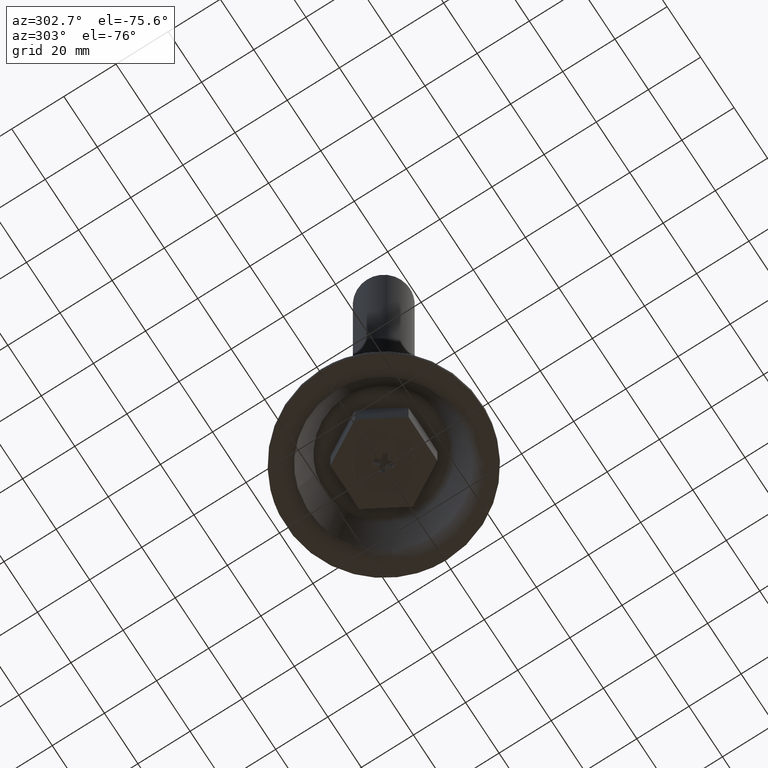
[diagram: clean part render]
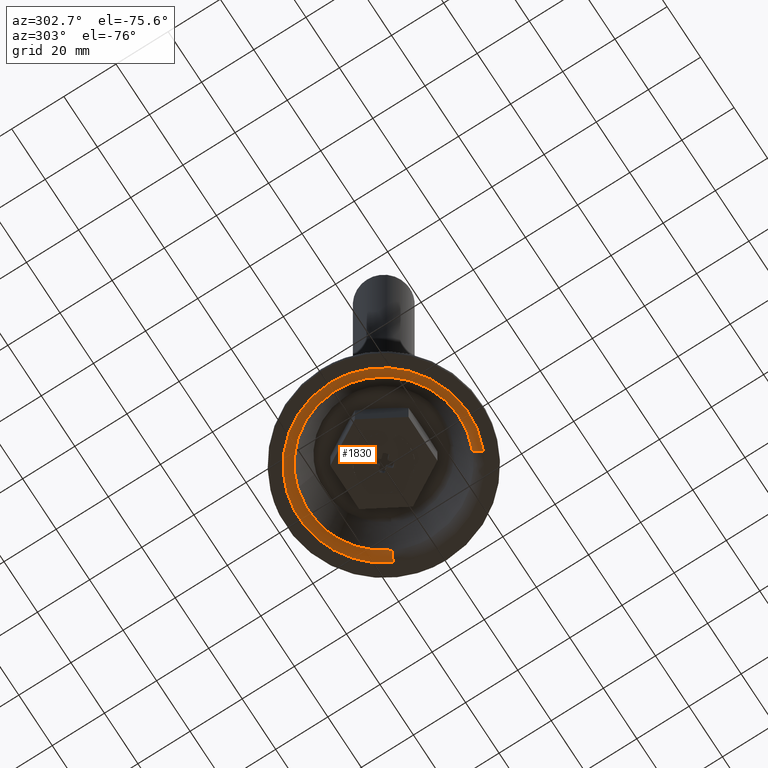
[diagram: same view with one face highlighted and labeled with its STEP entity id]
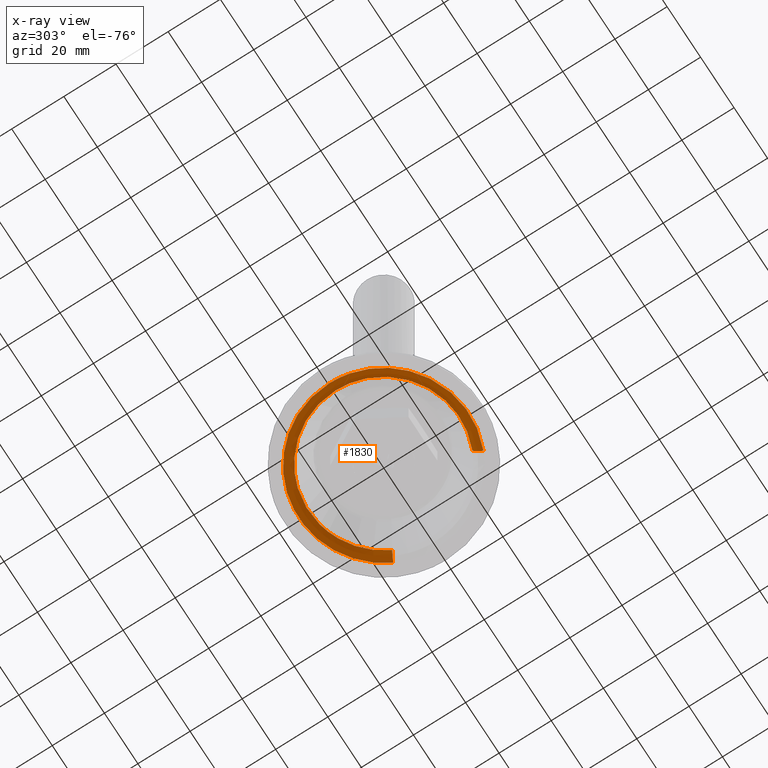
[diagram: x-ray of the same camera — body ghosted, the highlighted face saturated]
A machine part, auxiliary view. The second image highlights one B-rep face of the part: STEP entity #1830.
The next image is the same camera in x-ray: the body ghosted, the highlighted face saturated — about 0% of this face is hidden behind the body in this view.
In plain terms, the highlighted face is a freeform B-spline surface patch.
Its self-contained STEP definition (entity closure, byte-faithful):
#948=CARTESIAN_POINT('',(12.959905010489690,25.878573955914419,2.237050468426590));
#949=VERTEX_POINT('',#948);
#955=CARTESIAN_POINT('',(25.704757550631701,13.301322007688951,2.237050467865480));
#956=VERTEX_POINT('',#955);
#957=CARTESIAN_POINT('',(12.959905010489686,25.878573955914419,2.237050468426590));
#958=CARTESIAN_POINT('',(21.377962305026102,21.662838456192784,2.237050468240243));
#959=CARTESIAN_POINT('',(25.704757550631697,13.301322007688947,2.237050467865479));
#967=(BOUNDED_CURVE()B_SPLINE_CURVE(2,(#957,#958,#959),.UNSPECIFIED.,.F.,.U.)B_SPLINE_CURVE_WITH_KNOTS((3,3),(0.326127052924934,0.421825371003125),.UNSPECIFIED.)CURVE()GEOMETRIC_REPRESENTATION_ITEM()RATIONAL_B_SPLINE_CURVE((0.875940413897271,0.832104291764525,0.874103860136193))REPRESENTATION_ITEM(''));
#968=EDGE_CURVE('',#949,#956,#967,.T.);
#985=CARTESIAN_POINT('',(11.809436058359850,-26.423416659402740,2.237050464913309));
#986=VERTEX_POINT('',#985);
#1000=CARTESIAN_POINT('',(-28.942351802662198,0.0,2.237050468566510));
#1001=VERTEX_POINT('',#1000);
#1002=CARTESIAN_POINT('',(11.809436058359852,-26.423416659402740,2.237050464913309));
#1003=CARTESIAN_POINT('',(6.173360588688218,-28.942351802662198,2.237050468566510));
#1004=CARTESIAN_POINT('',(0.0,-28.942351802662198,2.237050468566510));
#1005=CARTESIAN_POINT('',(-28.942351802662202,-28.942351802662202,2.237050468566510));
#1006=CARTESIAN_POINT('',(-28.942351802662198,0.0,2.237050468566510));
#1014=(BOUNDED_CURVE()B_SPLINE_CURVE(2,(#1002,#1003,#1004,#1005,#1006),.UNSPECIFIED.,.F.,.U.)B_SPLINE_CURVE_WITH_KNOTS((3,2,3),(0.680709483576080,0.750000000000000,1.0),.UNSPECIFIED.)CURVE()GEOMETRIC_REPRESENTATION_ITEM()RATIONAL_B_SPLINE_CURVE((0.882641638330479,0.918821110445407,1.0,0.707106781186548,1.0))REPRESENTATION_ITEM(''));
#1015=EDGE_CURVE('',#986,#1001,#1014,.T.);
#1017=CARTESIAN_POINT('',(-8.220072023805756,27.750498081884249,2.237050468561174));
#1018=VERTEX_POINT('',#1017);
#1019=CARTESIAN_POINT('',(-28.942351802662198,0.0,2.237050468566510));
#1020=CARTESIAN_POINT('',(-28.942351802662195,21.612279164956146,2.237050468566510));
#1021=CARTESIAN_POINT('',(-8.220072023805756,27.750498081884245,2.237050468561175));
#1029=(BOUNDED_CURVE()B_SPLINE_CURVE(2,(#1019,#1020,#1021),.UNSPECIFIED.,.F.,.U.)B_SPLINE_CURVE_WITH_KNOTS((3,3),(0.0,0.201641517065129),.UNSPECIFIED.)CURVE()GEOMETRIC_REPRESENTATION_ITEM()RATIONAL_B_SPLINE_CURVE((1.0,0.763762268081467,0.908607213379560))REPRESENTATION_ITEM(''));
#1030=EDGE_CURVE('',#1001,#1018,#1029,.T.);
#1132=CARTESIAN_POINT('',(-8.220072023805756,27.750498081884245,2.237050468561175));
#1133=CARTESIAN_POINT('',(-4.196441294476952,28.942351802662202,2.237050468566509));
#1134=CARTESIAN_POINT('',(0.0,28.942351802662198,2.237050468566510));
#1135=CARTESIAN_POINT('',(6.842097701779646,28.942351802662198,2.237050468566510));
#1136=CARTESIAN_POINT('',(12.959905010489686,25.878573955914419,2.237050468426590));
#1144=(BOUNDED_CURVE()B_SPLINE_CURVE(2,(#1132,#1133,#1134,#1135,#1136),.UNSPECIFIED.,.F.,.U.)B_SPLINE_CURVE_WITH_KNOTS((3,2,3),(0.201641517065129,0.250000000000000,0.326127052924934),.UNSPECIFIED.)CURVE()GEOMETRIC_REPRESENTATION_ITEM()RATIONAL_B_SPLINE_CURVE((0.908607213379560,0.943344513105081,1.0,0.910811609720136,0.875940413897271))REPRESENTATION_ITEM(''));
#1145=EDGE_CURVE('',#1018,#949,#1144,.T.);
#1733=CARTESIAN_POINT('',(13.360122058931159,-29.893050781160223,0.005508355514710));
#1734=CARTESIAN_POINT('',(-14.869483275386079,-42.509728005006110,0.005508355514710));
#1735=CARTESIAN_POINT('',(-29.080025218520500,-15.047906157494939,0.005508355514710));
#1736=CARTESIAN_POINT('',(-44.127931376015439,14.032119061025560,0.005508355514710));
#1737=CARTESIAN_POINT('',(-15.047906157494939,29.080025218520500,0.005508355514710));
#1738=CARTESIAN_POINT('',(14.032119061025556,44.127931376015439,0.005508355514710));
#1739=CARTESIAN_POINT('',(29.080025218520500,15.047906157494939,0.005508355514710));
#1740=CARTESIAN_POINT('',(12.221916583652151,-27.346334971092841,-0.141036379579506));
#1741=CARTESIAN_POINT('',(-13.602688914978263,-38.888143939045086,-0.141036379579505));
#1742=CARTESIAN_POINT('',(-26.602574505198223,-13.765911194844453,-0.141036379579506));
#1743=CARTESIAN_POINT('',(-40.368485700042669,12.836663310353774,-0.141036379579506));
#1744=CARTESIAN_POINT('',(-13.765911194844453,26.602574505198223,-0.141036379579506));
#1745=CARTESIAN_POINT('',(12.836663310353773,40.368485700042669,-0.141036379579506));
#1746=CARTESIAN_POINT('',(26.602574505198223,13.765911194844453,-0.141036379579506));
#1747=CARTESIAN_POINT('',(11.773801071749741,-26.343683970298308,2.427354544556524));
#1748=CARTESIAN_POINT('',(-13.103947505260404,-37.462313513112626,2.427354544556523));
#1749=CARTESIAN_POINT('',(-25.627193417401873,-13.261185254386630,2.427354544556523));
#1750=CARTESIAN_POINT('',(-38.888378671788516,12.366008163015243,2.427354544556525));
#1751=CARTESIAN_POINT('',(-13.261185254386630,25.627193417401873,2.427354544556523));
#1752=CARTESIAN_POINT('',(12.366008163015241,38.888378671788516,2.427354544556525));
#1753=CARTESIAN_POINT('',(25.627193417401873,13.261185254386639,2.427354544556523));
#1761=(BOUNDED_SURFACE()B_SPLINE_SURFACE(2,2,((#1733,#1740,#1747),(#1734,#1741,#1748),(#1735,#1742,#1749),(#1736,#1743,#1750),(#1737,#1744,#1751),(#1738,#1745,#1752),(#1739,#1746,#1753)),.UNSPECIFIED.,.F.,.F.,.U.)B_SPLINE_SURFACE_WITH_KNOTS((3,2,2,3),(3,3),(0.0,52.079957855682849,106.329913955352500,160.579870055022100),(0.0,5.033719472252813),.UNSPECIFIED.)GEOMETRIC_REPRESENTATION_ITEM()RATIONAL_B_SPLINE_SURFACE(((0.898933571987331,0.737985855779478,0.901312929656294),(0.661043326759624,0.542688181205107,0.662793020572444),(0.919619680268002,0.754968262264206,0.922053791315759),(0.650269312030109,0.533843177827644,0.651990488458139),(0.919619680268002,0.754968262264206,0.922053791315759),(0.650269312030109,0.533843177827644,0.651990488458139),(0.919619680268002,0.754968262264206,0.922053791315759)))REPRESENTATION_ITEM('')SURFACE());
#1762=ORIENTED_EDGE('',*,*,#1015,.F.);
#1763=CARTESIAN_POINT('',(13.274496829089260,-29.701465753989400,6.272560E-016));
#1764=VERTEX_POINT('',#1763);
#1765=CARTESIAN_POINT('',(13.274496829089260,-29.701465753989396,6.272560E-016));
#1766=CARTESIAN_POINT('',(12.257614234115522,-27.426207869960287,1.437971E-009));
#1767=CARTESIAN_POINT('',(11.809436058359843,-26.423416659402736,2.237050464913308));
#1775=(BOUNDED_CURVE()B_SPLINE_CURVE(2,(#1765,#1766,#1767),.UNSPECIFIED.,.F.,.U.)B_SPLINE_CURVE_WITH_KNOTS((3,3),(-1.645059919763166,-0.344443062990276),.UNSPECIFIED.)CURVE()GEOMETRIC_REPRESENTATION_ITEM()RATIONAL_B_SPLINE_CURVE((0.884983933343745,0.752043508571352,0.887147264049694))REPRESENTATION_ITEM(''));
#1776=EDGE_CURVE('',#1764,#986,#1775,.T.);
#1777=ORIENTED_EDGE('',*,*,#1776,.F.);
#1778=CARTESIAN_POINT('',(-32.532896183340213,0.0,0.0));
#1779=VERTEX_POINT('',#1778);
#1780=CARTESIAN_POINT('',(13.274496829089262,-29.701465753989400,6.272560E-016));
#1781=CARTESIAN_POINT('',(6.939218364182151,-32.532896183340206,0.0));
#1782=CARTESIAN_POINT('',(0.0,-32.532896183340213,0.0));
#1783=CARTESIAN_POINT('',(-32.532896183340213,-32.532896183340213,0.0));
#1784=CARTESIAN_POINT('',(-32.532896183340213,0.0,0.0));
#1792=(BOUNDED_CURVE()B_SPLINE_CURVE(2,(#1780,#1781,#1782,#1783,#1784),.UNSPECIFIED.,.F.,.U.)B_SPLINE_CURVE_WITH_KNOTS((3,2,3),(0.680709483576861,0.750000000000000,1.0),.UNSPECIFIED.)CURVE()GEOMETRIC_REPRESENTATION_ITEM()RATIONAL_B_SPLINE_CURVE((0.882641638331295,0.918821110446322,1.0,0.707106781186547,1.0))REPRESENTATION_ITEM(''));
#1793=EDGE_CURVE('',#1764,#1779,#1792,.T.);
#1794=ORIENTED_EDGE('',*,*,#1793,.T.);
#1795=CARTESIAN_POINT('',(28.893650884553431,14.951463892994591,6.131464E-016));
#1796=VERTEX_POINT('',#1795);
#1797=CARTESIAN_POINT('',(-32.532896183340213,0.0,0.0));
#1798=CARTESIAN_POINT('',(-32.532896183340213,32.532896183340213,0.0));
#1799=CARTESIAN_POINT('',(0.0,32.532896183340213,0.0));
#1800=CARTESIAN_POINT('',(19.795868431173304,32.532896183340206,0.0));
#1801=CARTESIAN_POINT('',(28.893650884553434,14.951463892994592,6.131464E-016));
#1809=(BOUNDED_CURVE()B_SPLINE_CURVE(2,(#1797,#1798,#1799,#1800,#1801),.UNSPECIFIED.,.F.,.U.)B_SPLINE_CURVE_WITH_KNOTS((3,2,3),(0.0,0.250000000000000,0.421825371002056),.UNSPECIFIED.)CURVE()GEOMETRIC_REPRESENTATION_ITEM()RATIONAL_B_SPLINE_CURVE((1.0,0.707106781186547,1.0,0.798694056053569,0.874103860135254))REPRESENTATION_ITEM(''));
#1810=EDGE_CURVE('',#1779,#1796,#1809,.T.);
#1811=ORIENTED_EDGE('',*,*,#1810,.T.);
#1812=CARTESIAN_POINT('',(28.893650884553434,14.951463892994587,6.131464E-016));
#1813=CARTESIAN_POINT('',(26.680275031799241,13.806118526987175,1.800484E-009));
#1814=CARTESIAN_POINT('',(25.704757550631697,13.301322007688942,2.237050467865480));
#1822=(BOUNDED_CURVE()B_SPLINE_CURVE(2,(#1812,#1813,#1814),.UNSPECIFIED.,.F.,.U.)B_SPLINE_CURVE_WITH_KNOTS((3,3),(-1.645059919584499,-0.344443060965542),.UNSPECIFIED.)CURVE()GEOMETRIC_REPRESENTATION_ITEM()RATIONAL_B_SPLINE_CURVE((0.905349034847009,0.769349407206817,0.907562148223277))REPRESENTATION_ITEM(''));
#1823=EDGE_CURVE('',#1796,#956,#1822,.T.);
#1824=ORIENTED_EDGE('',*,*,#1823,.T.);
#1825=ORIENTED_EDGE('',*,*,#968,.F.);
#1826=ORIENTED_EDGE('',*,*,#1145,.F.);
#1827=ORIENTED_EDGE('',*,*,#1030,.F.);
#1828=EDGE_LOOP('',(#1762,#1777,#1794,#1811,#1824,#1825,#1826,#1827));
#1829=FACE_OUTER_BOUND('',#1828,.T.);
#1830=ADVANCED_FACE('',(#1829),#1761,.T.);